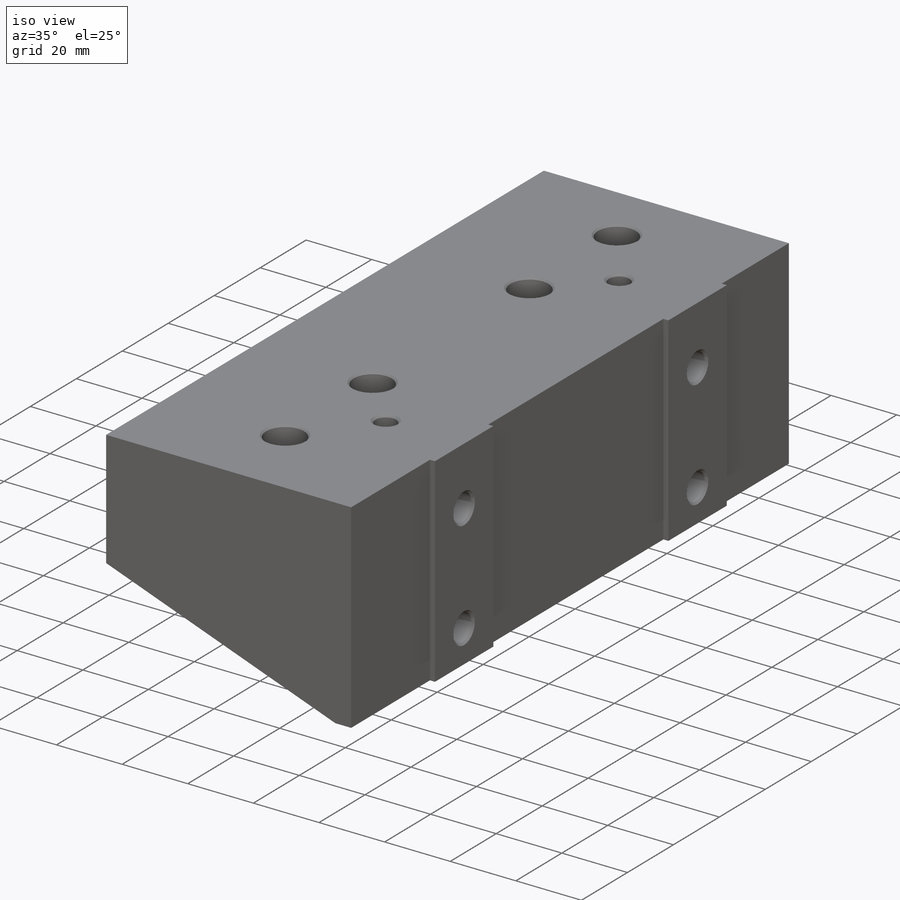
[diagram: iso view]
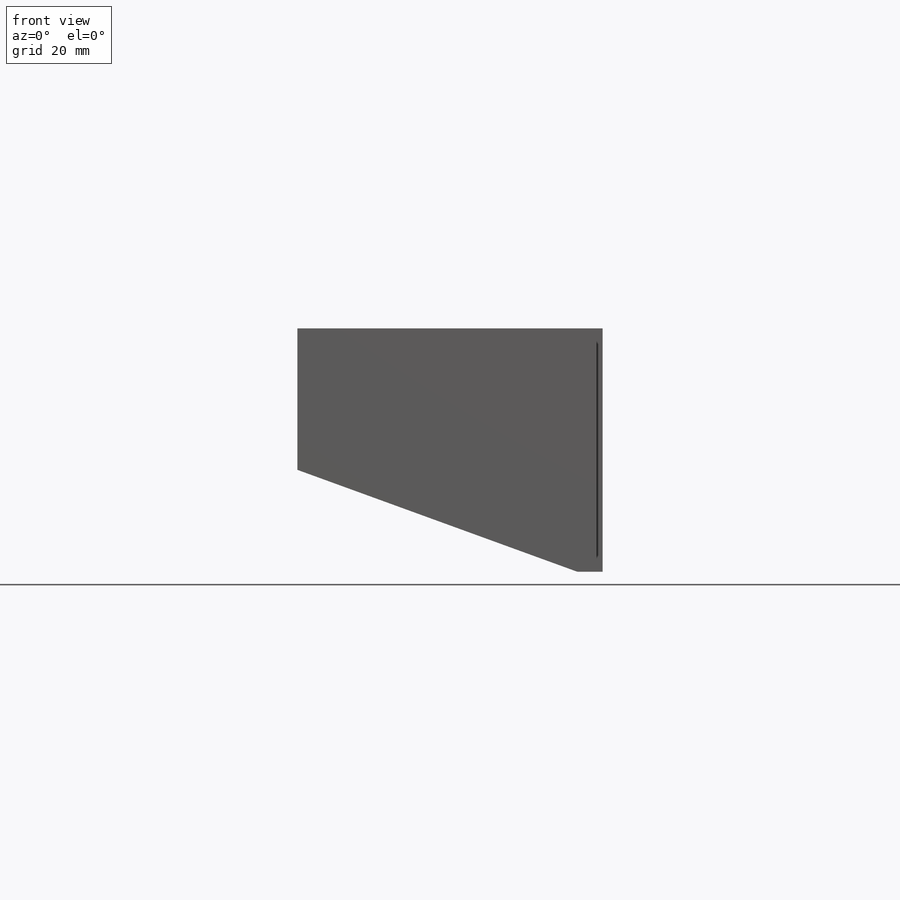
[diagram: front view]
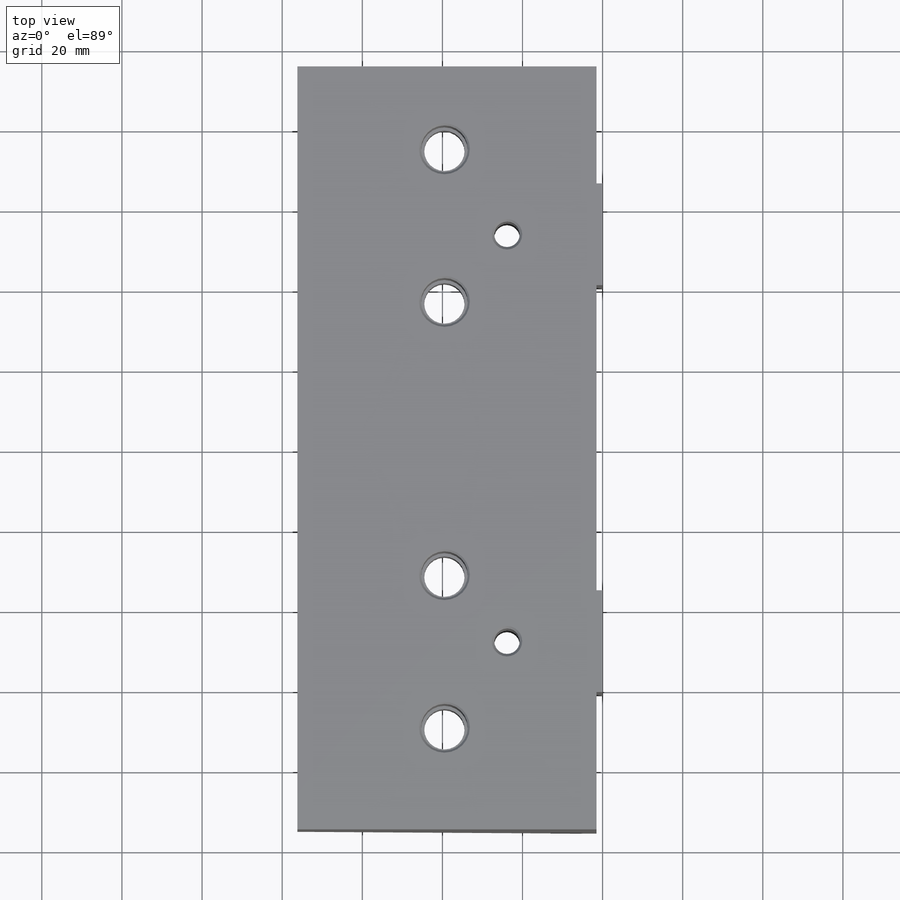
[diagram: top view]
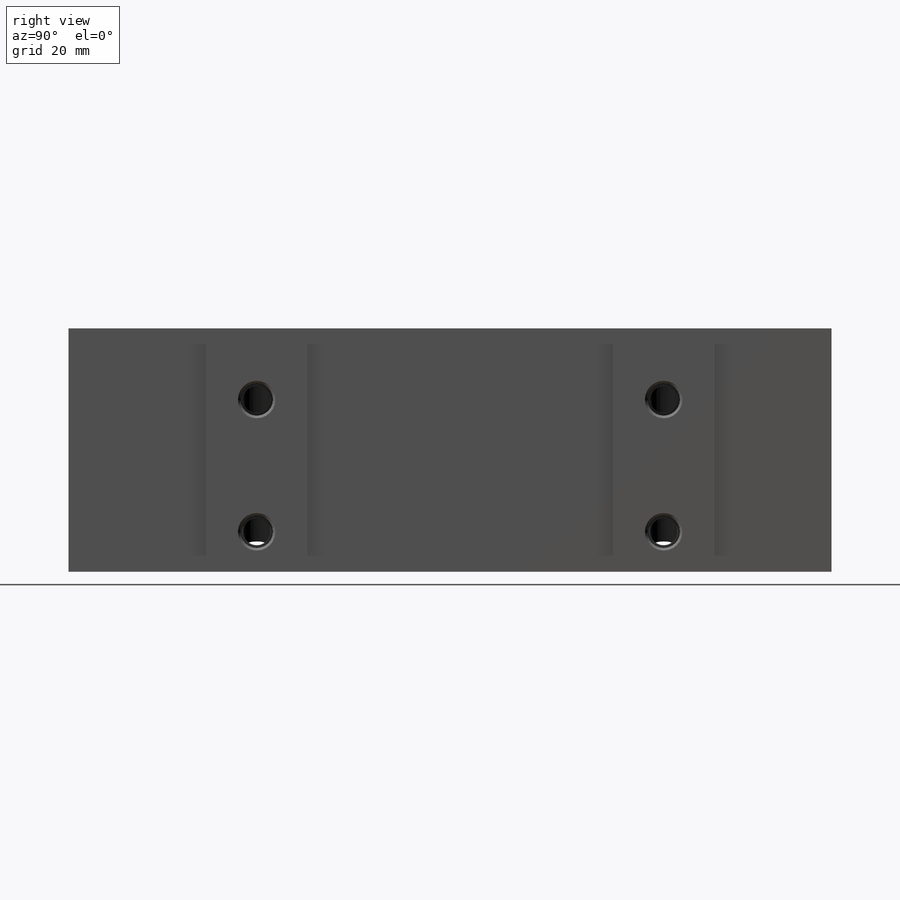
[diagram: right view]
SOLIDWORKS PART (.sldprt)
format: sldprt  version: not decoded by parser v0  size: 386,048 bytes
history: native  units: mm
features: sketch x8, hole x3, material x1, extrude x1, cut_extrude x1 (+14 scaffold rows collapsed)
feature tree (28):
  scaffold x14  (default folders/planes/origin — collapsed)
  material  "6061-T6 Al"
  sketch  "Sketch13"  dims[c1.D1=76.2mm c1.D2=63.5mm c1.D3=63.5mm c2.D3=70.0deg c2.D4=~60.757214mm c2.D2=6.35mm c2.D1=0.0mm]
  extrude  "Extrude1"  Depth=190.5mm
  hole  "Tapped Hole for 3/8-16 Helicoil1"  Diameter=10.0838mm Depth=60.757214mm
  sketch  "Sketch15"  dims[c1.D1=144.6784mm c1.D2=68.326mm c1.D3=36.7538mm c1.D4=74.676mm c1.D5=39.497mm c2.D2=38.1mm c2.D3=38.1mm c2.D1=31.6484mm]
  sketch  "Sketch14"  dims[hole-wizard template sketch: 42 standard entries collapsed; hole parameters kept: c12.Thru Tap Drill Depth=~60.757214mm c12.Thread Major Dia.=~11.68908mm c12.Thread Depth=28.702mm c12.Near C'Sink Dia.=12.7mm c12.D6=~4.399409mm c12.Near C'Sink Angle=90.0deg]
  hole  "Tapped Hole for 1/4-20 Helicoil1"  Diameter=6.7564mm Depth=23.876mm
  sketch  "Sketch17"  dims[D1=101.6mm D2=33.02mm D3=48.26mm D4=17.78mm]
  sketch  "Sketch16"  dims[hole-wizard template sketch: 27 standard entries collapsed; hole parameters kept: c8.Tap Drill Depth=23.876mm c8.Thread Major Dia.=~8.09498mm c8.Thread Depth=15.748mm c8.Near C'Sink Dia.=~9.36498mm c8.D6=~4.399409mm c8.Near C'Sink Angle=90.0deg c8.D7=~14.816244mm c8.Drill Angle=118.0deg]
  hole  "1/4 (0.25) Diameter Hole1"  Diameter=6.35mm Depth=60.757214mm
  sketch  "Sketch19"
  sketch  "Sketch18"  dims[hole-wizard template sketch: 54 standard entries collapsed; hole parameters kept: c17.Thru Hole Dia.=6.35mm c17.Thru Hole Depth=~60.757214mm c17.Near C'Sink Dia.=7.62mm c17.D4=~3.666174mm c17.Near C'Sink Angle=90.0deg]
  sketch  "Sketch20"  dims[c1.D3=~9.36498mm c1.D1=~60.757214mm c1.D2=~74.951519mm c2.D1=~60.757214mm c2.D2=~28.179981mm c3.D1=~60.757214mm c3.D2=~33.588853mm c4.D1=25.4mm c4.D2=25.4mm c4.D3=12.7mm c4.D4=12.7mm]
  cut_extrude  "Extrude2"  Depth=1.524mm
decode coverage: 12 of 13 modeling features carry decoded parameters
note: ~ marks probable driven/reference dimensions
note: suppression state not decoded; provenance and decode notes live in map.json
